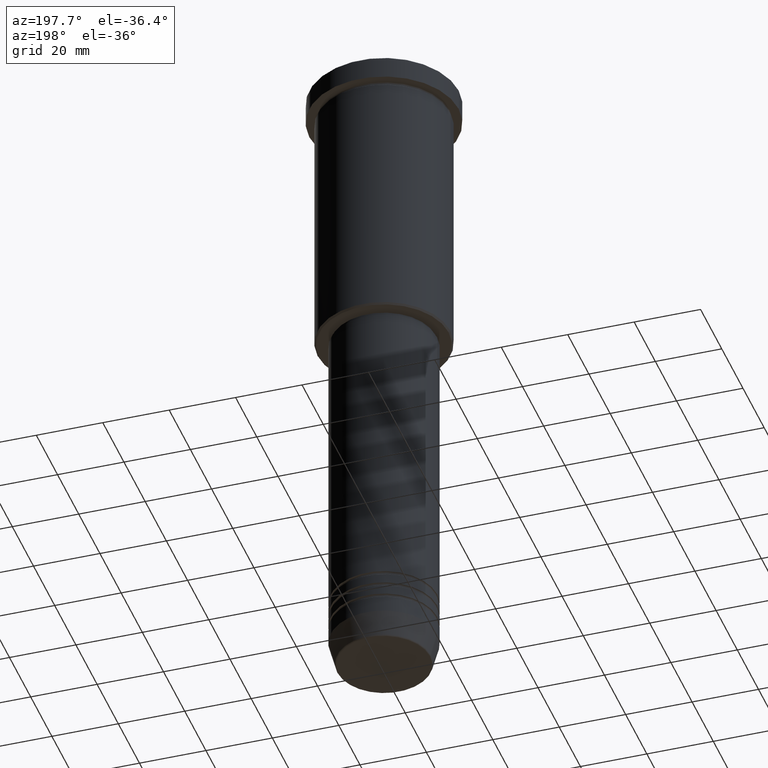
[diagram: clean part render]
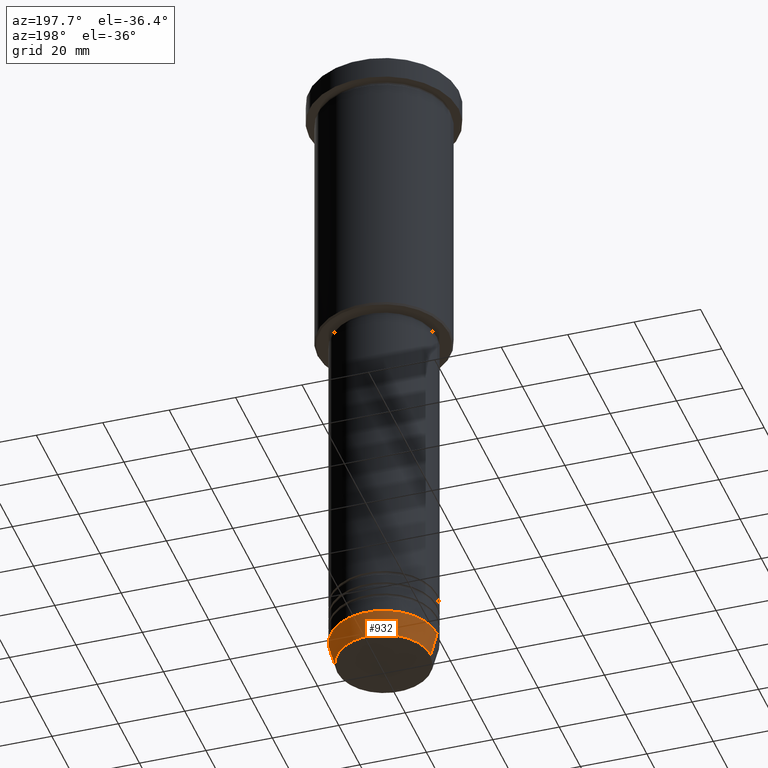
[diagram: same view with one face highlighted and labeled with its STEP entity id]
A machine part, auxiliary view. The second image highlights one B-rep face of the part: STEP entity #932.
In plain terms, the highlighted conical surface has half-angle 15 deg.
Its self-contained STEP definition (entity closure, byte-faithful):
#31 = CARTESIAN_POINT ( 'NONE',  ( 0.000000000000000000, 0.000000000000000000, -192.5000000000000284 ) ) ;
#75 = ORIENTED_EDGE ( 'NONE', *, *, #358, .T. ) ;
#101 = DIRECTION ( 'NONE',  ( -0.000000000000000000, -0.000000000000000000, 1.000000000000000000 ) ) ;
#129 = CIRCLE ( 'NONE', #748, 16.00000000000000000 ) ;
#167 = AXIS2_PLACEMENT_3D ( 'NONE', #547, #936, #363 ) ;
#204 = VECTOR ( 'NONE', #854, 1000.000000000000000 ) ;
#212 = DIRECTION ( 'NONE',  ( -0.000000000000000000, -0.000000000000000000, 1.000000000000000000 ) ) ;
#231 = EDGE_CURVE ( 'NONE', #385, #901, #480, .T. ) ;
#272 = CARTESIAN_POINT ( 'NONE',  ( -16.00000000000000000, 1.959434878635765131E-15, -192.5000000000000284 ) ) ;
#281 = CONICAL_SURFACE ( 'NONE', #959, 16.00000000000000000, 0.2617993877991500740 ) ;
#358 = EDGE_CURVE ( 'NONE', #385, #857, #569, .T. ) ;
#363 = DIRECTION ( 'NONE',  ( 1.000000000000000000, 0.000000000000000000, 0.000000000000000000 ) ) ;
#385 = VERTEX_POINT ( 'NONE', #405 ) ;
#400 = CARTESIAN_POINT ( 'NONE',  ( 16.00000000000000000, 0.000000000000000000, -192.5000000000000284 ) ) ;
#405 = CARTESIAN_POINT ( 'NONE',  ( 14.08968047592163941, 0.000000000000000000, -199.6294095225512706 ) ) ;
#410 = EDGE_CURVE ( 'NONE', #857, #812, #492, .T. ) ;
#450 = CARTESIAN_POINT ( 'NONE',  ( -14.08968047592163941, 1.842461544110202058E-15, -199.6294095225512706 ) ) ;
#480 = LINE ( 'NONE', #1130, #975 ) ;
#492 = LINE ( 'NONE', #774, #204 ) ;
#547 = CARTESIAN_POINT ( 'NONE',  ( 0.000000000000000000, 0.000000000000000000, -199.6294095225512706 ) ) ;
#554 = ORIENTED_EDGE ( 'NONE', *, *, #231, .F. ) ;
#569 = CIRCLE ( 'NONE', #167, 14.08968047592163941 ) ;
#612 = ORIENTED_EDGE ( 'NONE', *, *, #935, .F. ) ;
#656 = CARTESIAN_POINT ( 'NONE',  ( 0.000000000000000000, 0.000000000000000000, -192.5000000000000284 ) ) ;
#748 = AXIS2_PLACEMENT_3D ( 'NONE', #31, #212, #1124 ) ;
#760 = DIRECTION ( 'NONE',  ( 0.2588190451025213501, 0.000000000000000000, 0.9659258262890680902 ) ) ;
#774 = CARTESIAN_POINT ( 'NONE',  ( -16.00000000000000000, 1.959434878635765131E-15, -192.5000000000000284 ) ) ;
#812 = VERTEX_POINT ( 'NONE', #272 ) ;
#854 = DIRECTION ( 'NONE',  ( -0.2588190451025213501, 3.169619151431772337E-17, 0.9659258262890680902 ) ) ;
#857 = VERTEX_POINT ( 'NONE', #450 ) ;
#901 = VERTEX_POINT ( 'NONE', #400 ) ;
#925 = ORIENTED_EDGE ( 'NONE', *, *, #410, .T. ) ;
#932 = ADVANCED_FACE ( 'NONE', ( #1023 ), #281, .T. ) ;
#935 = EDGE_CURVE ( 'NONE', #901, #812, #129, .T. ) ;
#936 = DIRECTION ( 'NONE',  ( -0.000000000000000000, -0.000000000000000000, 1.000000000000000000 ) ) ;
#959 = AXIS2_PLACEMENT_3D ( 'NONE', #656, #101, #1100 ) ;
#975 = VECTOR ( 'NONE', #760, 1000.000000000000000 ) ;
#1023 = FACE_OUTER_BOUND ( 'NONE', #1035, .T. ) ;
#1035 = EDGE_LOOP ( 'NONE', ( #75, #925, #612, #554 ) ) ;
#1100 = DIRECTION ( 'NONE',  ( 1.000000000000000000, 0.000000000000000000, 0.000000000000000000 ) ) ;
#1124 = DIRECTION ( 'NONE',  ( 1.000000000000000000, 0.000000000000000000, 0.000000000000000000 ) ) ;
#1130 = CARTESIAN_POINT ( 'NONE',  ( 16.00000000000000000, 0.000000000000000000, -192.5000000000000284 ) ) ;